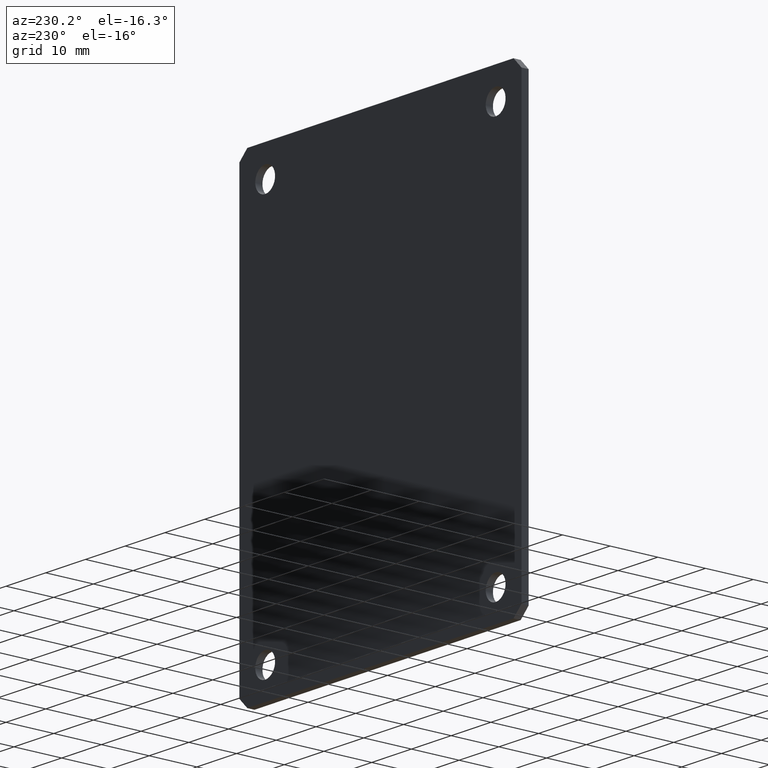
[diagram: clean part render]
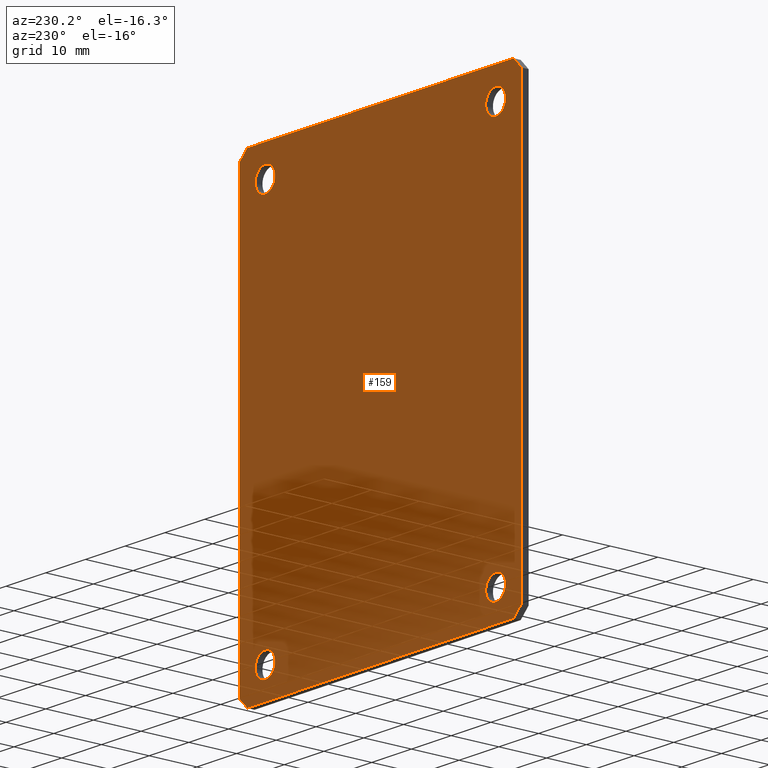
[diagram: same view with one face highlighted and labeled with its STEP entity id]
A machine part, auxiliary view. The second image highlights one B-rep face of the part: STEP entity #159.
In plain terms, the highlighted planar face has unit normal (0, 1, 0).
Its self-contained STEP definition (entity closure, byte-faithful):
#1 = VERTEX_POINT ( 'NONE', #412 ) ;
#3 = EDGE_CURVE ( 'NONE', #147, #1, #605, .T. ) ;
#4 = ORIENTED_EDGE ( 'NONE', *, *, #3, .T. ) ;
#11 = ORIENTED_EDGE ( 'NONE', *, *, #24, .F. ) ;
#18 = ORIENTED_EDGE ( 'NONE', *, *, #59, .T. ) ;
#24 = EDGE_CURVE ( 'NONE', #199, #198, #538, .T. ) ;
#32 = EDGE_CURVE ( 'NONE', #191, #190, #510, .T. ) ;
#41 = ORIENTED_EDGE ( 'NONE', *, *, #189, .F. ) ;
#46 = EDGE_CURVE ( 'NONE', #54, #222, #488, .T. ) ;
#48 = EDGE_LOOP ( 'NONE', ( #41, #137 ) ) ;
#50 = ORIENTED_EDGE ( 'NONE', *, *, #51, .T. ) ;
#51 = EDGE_CURVE ( 'NONE', #52, #57, #481, .T. ) ;
#52 = VERTEX_POINT ( 'NONE', #476 ) ;
#53 = EDGE_CURVE ( 'NONE', #57, #54, #477, .T. ) ;
#54 = VERTEX_POINT ( 'NONE', #472 ) ;
#55 = ORIENTED_EDGE ( 'NONE', *, *, #46, .T. ) ;
#56 = ORIENTED_EDGE ( 'NONE', *, *, #53, .T. ) ;
#57 = VERTEX_POINT ( 'NONE', #471 ) ;
#59 = EDGE_CURVE ( 'NONE', #185, #52, #466, .T. ) ;
#135 = ORIENTED_EDGE ( 'NONE', *, *, #197, .F. ) ;
#136 = EDGE_LOOP ( 'NONE', ( #135, #11 ) ) ;
#137 = ORIENTED_EDGE ( 'NONE', *, *, #32, .F. ) ;
#141 = EDGE_LOOP ( 'NONE', ( #142, #145, #4, #183, #18, #50, #56, #55 ) ) ;
#142 = ORIENTED_EDGE ( 'NONE', *, *, #143, .T. ) ;
#143 = EDGE_CURVE ( 'NONE', #222, #144, #584, .T. ) ;
#144 = VERTEX_POINT ( 'NONE', #580 ) ;
#145 = ORIENTED_EDGE ( 'NONE', *, *, #146, .T. ) ;
#146 = EDGE_CURVE ( 'NONE', #144, #147, #579, .T. ) ;
#147 = VERTEX_POINT ( 'NONE', #575 ) ;
#148 = EDGE_CURVE ( 'NONE', #165, #164, #574, .T. ) ;
#149 = EDGE_LOOP ( 'NONE', ( #150, #176 ) ) ;
#150 = ORIENTED_EDGE ( 'NONE', *, *, #170, .F. ) ;
#151 = EDGE_CURVE ( 'NONE', #209, #208, #629, .T. ) ;
#159 = ADVANCED_FACE ( 'NONE', ( #610, #609, #608, #607, #606 ), #232, .T. ) ;
#160 = EDGE_LOOP ( 'NONE', ( #161, #162 ) ) ;
#161 = ORIENTED_EDGE ( 'NONE', *, *, #207, .F. ) ;
#162 = ORIENTED_EDGE ( 'NONE', *, *, #151, .F. ) ;
#164 = VERTEX_POINT ( 'NONE', #226 ) ;
#165 = VERTEX_POINT ( 'NONE', #225 ) ;
#170 = EDGE_CURVE ( 'NONE', #164, #165, #244, .T. ) ;
#176 = ORIENTED_EDGE ( 'NONE', *, *, #148, .F. ) ;
#183 = ORIENTED_EDGE ( 'NONE', *, *, #184, .T. ) ;
#184 = EDGE_CURVE ( 'NONE', #1, #185, #279, .T. ) ;
#185 = VERTEX_POINT ( 'NONE', #275 ) ;
#189 = EDGE_CURVE ( 'NONE', #190, #191, #268, .T. ) ;
#190 = VERTEX_POINT ( 'NONE', #263 ) ;
#191 = VERTEX_POINT ( 'NONE', #262 ) ;
#197 = EDGE_CURVE ( 'NONE', #198, #199, #301, .T. ) ;
#198 = VERTEX_POINT ( 'NONE', #292 ) ;
#199 = VERTEX_POINT ( 'NONE', #291 ) ;
#207 = EDGE_CURVE ( 'NONE', #208, #209, #331, .T. ) ;
#208 = VERTEX_POINT ( 'NONE', #323 ) ;
#209 = VERTEX_POINT ( 'NONE', #322 ) ;
#222 = VERTEX_POINT ( 'NONE', #357 ) ;
#225 = CARTESIAN_POINT ( 'NONE',  ( -29.00000000000000000, 1.500000000000000000, -38.25000000000000000 ) ) ;
#226 = CARTESIAN_POINT ( 'NONE',  ( -29.00000000000000000, 1.500000000000000000, -43.25000000000000700 ) ) ;
#228 = DIRECTION ( 'NONE',  ( 0.0000000000000000000, -0.0000000000000000000, 1.000000000000000000 ) ) ;
#229 = DIRECTION ( 'NONE',  ( 0.0000000000000000000, 1.000000000000000000, 0.0000000000000000000 ) ) ;
#230 = CARTESIAN_POINT ( 'NONE',  ( 2.081668171172168500E-014, 1.500000000000000000, -80.50000000000042600 ) ) ;
#231 = AXIS2_PLACEMENT_3D ( 'NONE', #230, #229, #228 ) ;
#232 = PLANE ( 'NONE',  #231 ) ;
#240 = DIRECTION ( 'NONE',  ( 0.0000000000000000000, 0.0000000000000000000, 1.000000000000000000 ) ) ;
#241 = DIRECTION ( 'NONE',  ( 0.0000000000000000000, 1.000000000000000000, 0.0000000000000000000 ) ) ;
#242 = CARTESIAN_POINT ( 'NONE',  ( -29.00000000000000000, 1.500000000000000000, -40.75000000000000000 ) ) ;
#243 = AXIS2_PLACEMENT_3D ( 'NONE', #242, #241, #240 ) ;
#244 = CIRCLE ( 'NONE', #243, 2.500000000000002200 ) ;
#262 = CARTESIAN_POINT ( 'NONE',  ( 29.00000000000000000, 1.500000000000000000, -38.25000000000000000 ) ) ;
#263 = CARTESIAN_POINT ( 'NONE',  ( 29.00000000000000000, 1.500000000000000000, -43.25000000000000700 ) ) ;
#264 = DIRECTION ( 'NONE',  ( 0.0000000000000000000, 0.0000000000000000000, -1.000000000000000000 ) ) ;
#265 = DIRECTION ( 'NONE',  ( -0.0000000000000000000, 1.000000000000000000, -0.0000000000000000000 ) ) ;
#266 = CARTESIAN_POINT ( 'NONE',  ( 29.00000000000000000, 1.500000000000000000, -40.75000000000000000 ) ) ;
#267 = AXIS2_PLACEMENT_3D ( 'NONE', #266, #265, #264 ) ;
#268 = CIRCLE ( 'NONE', #267, 2.500000000000002200 ) ;
#275 = CARTESIAN_POINT ( 'NONE',  ( 33.49999999999999300, 1.500000000000000000, 46.99999999999999300 ) ) ;
#276 = DIRECTION ( 'NONE',  ( 1.000000000000000000, -0.0000000000000000000, -0.0000000000000000000 ) ) ;
#277 = VECTOR ( 'NONE', #276, 1000.000000000000000 ) ;
#278 = CARTESIAN_POINT ( 'NONE',  ( 33.49999999999999300, 1.500000000000000000, 46.99999999999999300 ) ) ;
#279 = LINE ( 'NONE', #278, #277 ) ;
#291 = CARTESIAN_POINT ( 'NONE',  ( -29.00000000000000000, 1.500000000000000000, 43.25000000000000700 ) ) ;
#292 = CARTESIAN_POINT ( 'NONE',  ( -29.00000000000000000, 1.500000000000000000, 38.25000000000000000 ) ) ;
#293 = DIRECTION ( 'NONE',  ( 0.0000000000000000000, 0.0000000000000000000, -1.000000000000000000 ) ) ;
#294 = DIRECTION ( 'NONE',  ( -0.0000000000000000000, 1.000000000000000000, -0.0000000000000000000 ) ) ;
#295 = CARTESIAN_POINT ( 'NONE',  ( -29.00000000000000000, 1.500000000000000000, 40.75000000000000000 ) ) ;
#296 = AXIS2_PLACEMENT_3D ( 'NONE', #295, #294, #293 ) ;
#301 = CIRCLE ( 'NONE', #296, 2.500000000000002200 ) ;
#322 = CARTESIAN_POINT ( 'NONE',  ( 29.00000000000000000, 1.500000000000000000, 43.25000000000000700 ) ) ;
#323 = CARTESIAN_POINT ( 'NONE',  ( 29.00000000000000000, 1.500000000000000000, 38.25000000000000000 ) ) ;
#324 = DIRECTION ( 'NONE',  ( 0.0000000000000000000, 0.0000000000000000000, 1.000000000000000000 ) ) ;
#325 = DIRECTION ( 'NONE',  ( 0.0000000000000000000, 1.000000000000000000, 0.0000000000000000000 ) ) ;
#326 = CARTESIAN_POINT ( 'NONE',  ( 29.00000000000000000, 1.500000000000000000, 40.75000000000000000 ) ) ;
#327 = AXIS2_PLACEMENT_3D ( 'NONE', #326, #325, #324 ) ;
#331 = CIRCLE ( 'NONE', #327, 2.500000000000002200 ) ;
#357 = CARTESIAN_POINT ( 'NONE',  ( -33.49999999999999300, 1.500000000000000000, -46.99999999999999300 ) ) ;
#394 = DIRECTION ( 'NONE',  ( 0.7071067811865425800, 0.0000000000000000000, 0.7071067811865525700 ) ) ;
#412 = CARTESIAN_POINT ( 'NONE',  ( -33.49999999999999300, 1.500000000000000000, 46.99999999999999300 ) ) ;
#463 = DIRECTION ( 'NONE',  ( 0.7071067811865425800, -0.0000000000000000000, -0.7071067811865525700 ) ) ;
#464 = VECTOR ( 'NONE', #463, 999.9999999999998900 ) ;
#465 = CARTESIAN_POINT ( 'NONE',  ( 35.50000000000000000, 1.500000000000000000, 44.99999999999996400 ) ) ;
#466 = LINE ( 'NONE', #465, #464 ) ;
#471 = CARTESIAN_POINT ( 'NONE',  ( 35.50000000000000000, 1.500000000000000000, -44.99999999999996400 ) ) ;
#472 = CARTESIAN_POINT ( 'NONE',  ( 33.49999999999999300, 1.500000000000000000, -46.99999999999999300 ) ) ;
#473 = DIRECTION ( 'NONE',  ( -0.7071067811865425800, 0.0000000000000000000, -0.7071067811865525700 ) ) ;
#474 = VECTOR ( 'NONE', #473, 999.9999999999998900 ) ;
#475 = CARTESIAN_POINT ( 'NONE',  ( 35.50000000000000000, 1.500000000000000000, -44.99999999999996400 ) ) ;
#476 = CARTESIAN_POINT ( 'NONE',  ( 35.50000000000000000, 1.500000000000000000, 44.99999999999996400 ) ) ;
#477 = LINE ( 'NONE', #475, #474 ) ;
#478 = DIRECTION ( 'NONE',  ( -0.0000000000000000000, -0.0000000000000000000, -1.000000000000000000 ) ) ;
#479 = VECTOR ( 'NONE', #478, 1000.000000000000000 ) ;
#480 = CARTESIAN_POINT ( 'NONE',  ( 35.50000000000000000, 1.500000000000000000, -44.99999999999996400 ) ) ;
#481 = LINE ( 'NONE', #480, #479 ) ;
#482 = DIRECTION ( 'NONE',  ( -1.000000000000000000, 0.0000000000000000000, 0.0000000000000000000 ) ) ;
#483 = VECTOR ( 'NONE', #482, 1000.000000000000000 ) ;
#484 = CARTESIAN_POINT ( 'NONE',  ( 33.49999999999999300, 1.500000000000000000, -46.99999999999999300 ) ) ;
#488 = LINE ( 'NONE', #484, #483 ) ;
#506 = DIRECTION ( 'NONE',  ( 0.0000000000000000000, 0.0000000000000000000, -1.000000000000000000 ) ) ;
#507 = DIRECTION ( 'NONE',  ( -0.0000000000000000000, 1.000000000000000000, -0.0000000000000000000 ) ) ;
#508 = CARTESIAN_POINT ( 'NONE',  ( 29.00000000000000000, 1.500000000000000000, -40.75000000000000000 ) ) ;
#509 = AXIS2_PLACEMENT_3D ( 'NONE', #508, #507, #506 ) ;
#510 = CIRCLE ( 'NONE', #509, 2.500000000000002200 ) ;
#530 = DIRECTION ( 'NONE',  ( 0.0000000000000000000, 0.0000000000000000000, -1.000000000000000000 ) ) ;
#531 = DIRECTION ( 'NONE',  ( -0.0000000000000000000, 1.000000000000000000, -0.0000000000000000000 ) ) ;
#532 = CARTESIAN_POINT ( 'NONE',  ( -29.00000000000000000, 1.500000000000000000, 40.75000000000000000 ) ) ;
#533 = AXIS2_PLACEMENT_3D ( 'NONE', #532, #531, #530 ) ;
#538 = CIRCLE ( 'NONE', #533, 2.500000000000002200 ) ;
#571 = DIRECTION ( 'NONE',  ( 0.0000000000000000000, 1.000000000000000000, 0.0000000000000000000 ) ) ;
#572 = CARTESIAN_POINT ( 'NONE',  ( -29.00000000000000000, 1.500000000000000000, -40.75000000000000000 ) ) ;
#573 = AXIS2_PLACEMENT_3D ( 'NONE', #572, #571, #630 ) ;
#574 = CIRCLE ( 'NONE', #573, 2.500000000000002200 ) ;
#575 = CARTESIAN_POINT ( 'NONE',  ( -35.50000000000000000, 1.500000000000000000, 44.99999999999996400 ) ) ;
#576 = DIRECTION ( 'NONE',  ( 0.0000000000000000000, 0.0000000000000000000, 1.000000000000000000 ) ) ;
#577 = VECTOR ( 'NONE', #576, 1000.000000000000000 ) ;
#578 = CARTESIAN_POINT ( 'NONE',  ( -35.50000000000000000, 1.500000000000000000, -44.99999999999996400 ) ) ;
#579 = LINE ( 'NONE', #578, #577 ) ;
#580 = CARTESIAN_POINT ( 'NONE',  ( -35.50000000000000000, 1.500000000000000000, -44.99999999999996400 ) ) ;
#581 = DIRECTION ( 'NONE',  ( -0.7071067811865425800, -0.0000000000000000000, 0.7071067811865525700 ) ) ;
#582 = VECTOR ( 'NONE', #581, 999.9999999999998900 ) ;
#583 = CARTESIAN_POINT ( 'NONE',  ( -35.50000000000000000, 1.500000000000000000, -44.99999999999996400 ) ) ;
#584 = LINE ( 'NONE', #583, #582 ) ;
#603 = VECTOR ( 'NONE', #394, 999.9999999999998900 ) ;
#604 = CARTESIAN_POINT ( 'NONE',  ( -35.50000000000000000, 1.500000000000000000, 44.99999999999996400 ) ) ;
#605 = LINE ( 'NONE', #604, #603 ) ;
#606 = FACE_BOUND ( 'NONE', #136, .T. ) ;
#607 = FACE_BOUND ( 'NONE', #48, .T. ) ;
#608 = FACE_OUTER_BOUND ( 'NONE', #141, .T. ) ;
#609 = FACE_BOUND ( 'NONE', #149, .T. ) ;
#610 = FACE_BOUND ( 'NONE', #160, .T. ) ;
#625 = DIRECTION ( 'NONE',  ( 0.0000000000000000000, 0.0000000000000000000, 1.000000000000000000 ) ) ;
#626 = DIRECTION ( 'NONE',  ( 0.0000000000000000000, 1.000000000000000000, 0.0000000000000000000 ) ) ;
#627 = CARTESIAN_POINT ( 'NONE',  ( 29.00000000000000000, 1.500000000000000000, 40.75000000000000000 ) ) ;
#628 = AXIS2_PLACEMENT_3D ( 'NONE', #627, #626, #625 ) ;
#629 = CIRCLE ( 'NONE', #628, 2.500000000000002200 ) ;
#630 = DIRECTION ( 'NONE',  ( 0.0000000000000000000, 0.0000000000000000000, 1.000000000000000000 ) ) ;